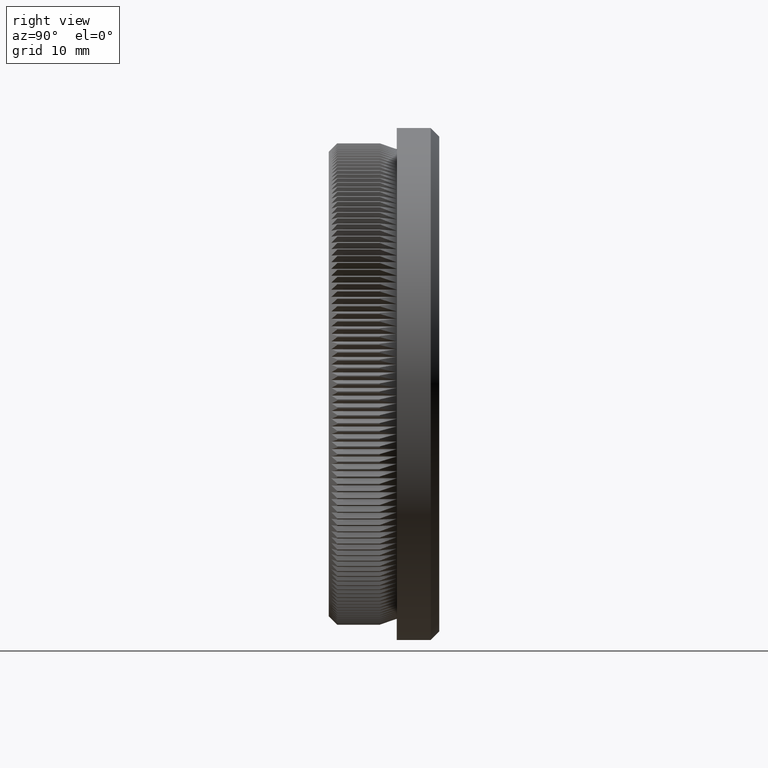
[diagram: clean part render]
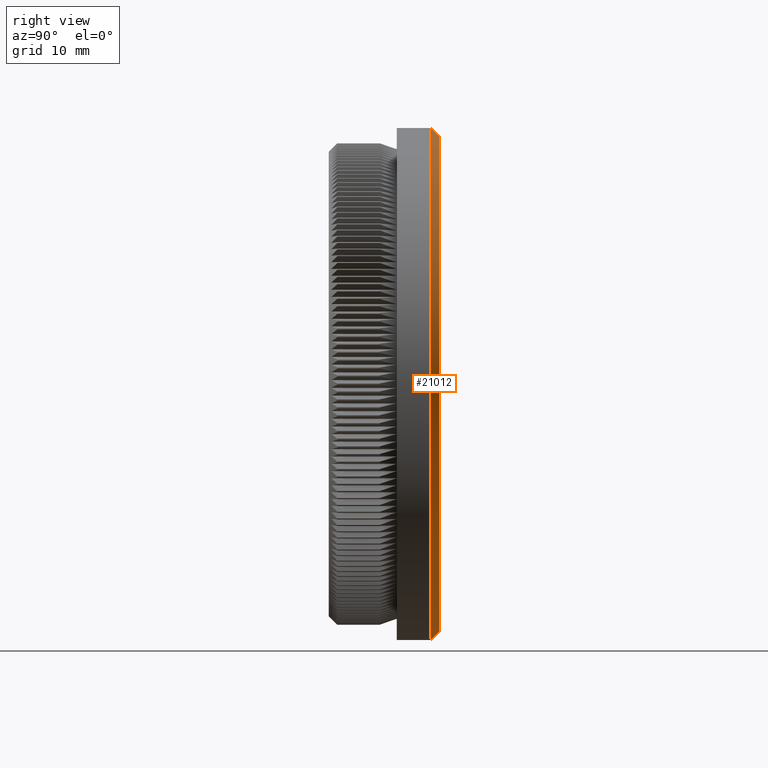
[diagram: same view with one face highlighted and labeled with its STEP entity id]
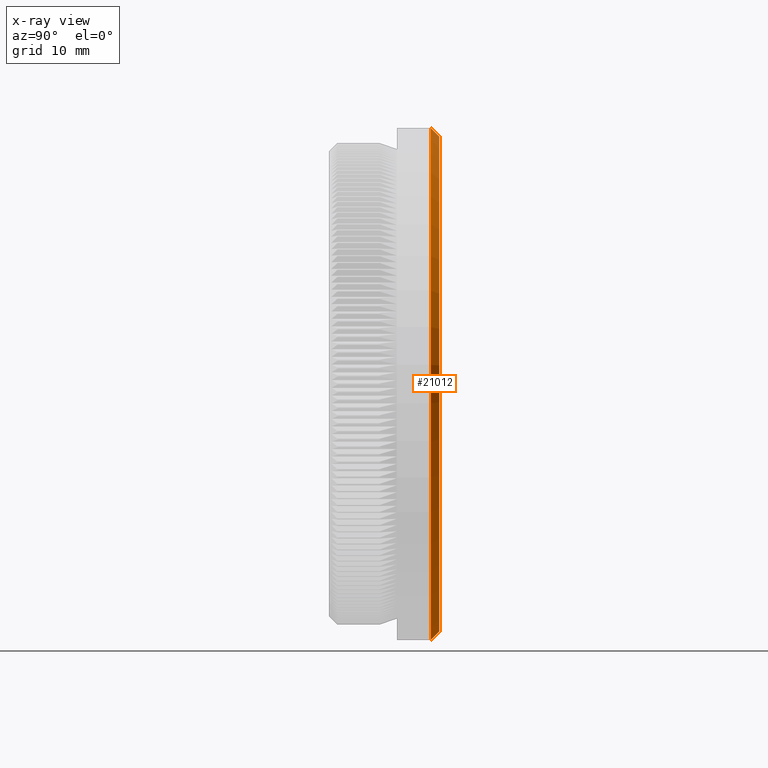
[diagram: x-ray of the same camera — body ghosted, the highlighted face saturated]
A machine part, right view. The second image highlights one B-rep face of the part: STEP entity #21012.
The next image is the same camera in x-ray: the body ghosted, the highlighted face saturated — about 0% of this face is hidden behind the body in this view.
In plain terms, the highlighted conical surface has half-angle 45 deg.
Its self-contained STEP definition (entity closure, byte-faithful):
#2274 = VERTEX_POINT ( 'NONE', #8741 ) ;
#3783 = CARTESIAN_POINT ( 'NONE',  ( 0.0000000000000000000, 11.99999999999998800, 0.0000000000000000000 ) ) ;
#4373 = EDGE_LOOP ( 'NONE', ( #26078, #10094, #21082, #19185 ) ) ;
#6790 = DIRECTION ( 'NONE',  ( -0.0000000000000000000, -1.000000000000000000, -0.0000000000000000000 ) ) ;
#8262 = LINE ( 'NONE', #20561, #30573 ) ;
#8741 = CARTESIAN_POINT ( 'NONE',  ( 0.0000000000000000000, 13.00000000000000000, -29.14999999999998400 ) ) ;
#9440 = DIRECTION ( 'NONE',  ( 0.0000000000000000000, 0.0000000000000000000, 1.000000000000000000 ) ) ;
#10094 = ORIENTED_EDGE ( 'NONE', *, *, #28825, .T. ) ;
#12314 = CARTESIAN_POINT ( 'NONE',  ( 3.631077759471901200E-015, 13.00000000000000000, 29.14999999999998400 ) ) ;
#14214 = CARTESIAN_POINT ( 'NONE',  ( 3.692310099429269600E-015, 11.99999999999998800, 30.14999999999999500 ) ) ;
#14610 = EDGE_CURVE ( 'NONE', #34901, #2274, #29753, .T. ) ;
#14616 = DIRECTION ( 'NONE',  ( 0.0000000000000000000, 1.000000000000000000, 0.0000000000000000000 ) ) ;
#18263 = DIRECTION ( 'NONE',  ( -0.0000000000000000000, -1.000000000000000000, -0.0000000000000000000 ) ) ;
#19185 = ORIENTED_EDGE ( 'NONE', *, *, #28190, .F. ) ;
#19196 = VECTOR ( 'NONE', #20327, 1000.000000000000100 ) ;
#19908 = CARTESIAN_POINT ( 'NONE',  ( 3.692310099429269600E-015, 11.99999999999998800, 30.14999999999999500 ) ) ;
#20327 = DIRECTION ( 'NONE',  ( 8.659560562354932900E-017, -0.7071067811865474600, 0.7071067811865474600 ) ) ;
#20561 = CARTESIAN_POINT ( 'NONE',  ( 0.0000000000000000000, 11.99999999999998800, -30.14999999999999500 ) ) ;
#21012 = ADVANCED_FACE ( 'NONE', ( #37748 ), #34135, .T. ) ;
#21082 = ORIENTED_EDGE ( 'NONE', *, *, #25040, .F. ) ;
#21635 = VERTEX_POINT ( 'NONE', #19908 ) ;
#22208 = AXIS2_PLACEMENT_3D ( 'NONE', #23252, #14616, #26305 ) ;
#23252 = CARTESIAN_POINT ( 'NONE',  ( 0.0000000000000000000, 13.00000000000000000, 0.0000000000000000000 ) ) ;
#24214 = CARTESIAN_POINT ( 'NONE',  ( 0.0000000000000000000, 11.99999999999998800, 0.0000000000000000000 ) ) ;
#25040 = EDGE_CURVE ( 'NONE', #37366, #21635, #31212, .T. ) ;
#26017 = LINE ( 'NONE', #14214, #19196 ) ;
#26078 = ORIENTED_EDGE ( 'NONE', *, *, #14610, .F. ) ;
#26305 = DIRECTION ( 'NONE',  ( 0.0000000000000000000, 0.0000000000000000000, 1.000000000000000000 ) ) ;
#26397 = DIRECTION ( 'NONE',  ( 0.0000000000000000000, -0.7071067811865474600, -0.7071067811865474600 ) ) ;
#28190 = EDGE_CURVE ( 'NONE', #2274, #37366, #8262, .T. ) ;
#28528 = CARTESIAN_POINT ( 'NONE',  ( 0.0000000000000000000, 11.99999999999998800, -30.14999999999999500 ) ) ;
#28825 = EDGE_CURVE ( 'NONE', #34901, #21635, #26017, .T. ) ;
#29753 = CIRCLE ( 'NONE', #22208, 29.14999999999998400 ) ;
#30228 = DIRECTION ( 'NONE',  ( 0.0000000000000000000, 0.0000000000000000000, -1.000000000000000000 ) ) ;
#30573 = VECTOR ( 'NONE', #26397, 1000.000000000000100 ) ;
#31212 = CIRCLE ( 'NONE', #33551, 30.14999999999999500 ) ;
#33551 = AXIS2_PLACEMENT_3D ( 'NONE', #24214, #18263, #9440 ) ;
#33712 = AXIS2_PLACEMENT_3D ( 'NONE', #3783, #6790, #30228 ) ;
#34135 = CONICAL_SURFACE ( 'NONE', #33712, 30.14999999999999500, 0.7853981633974482800 ) ;
#34901 = VERTEX_POINT ( 'NONE', #12314 ) ;
#37366 = VERTEX_POINT ( 'NONE', #28528 ) ;
#37748 = FACE_OUTER_BOUND ( 'NONE', #4373, .T. ) ;